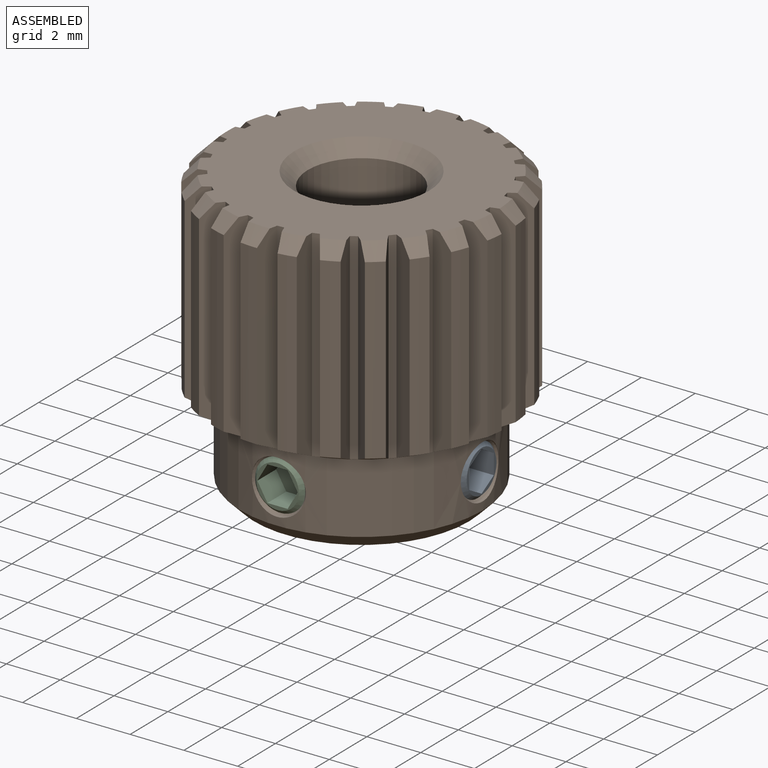
[diagram: assembled view]
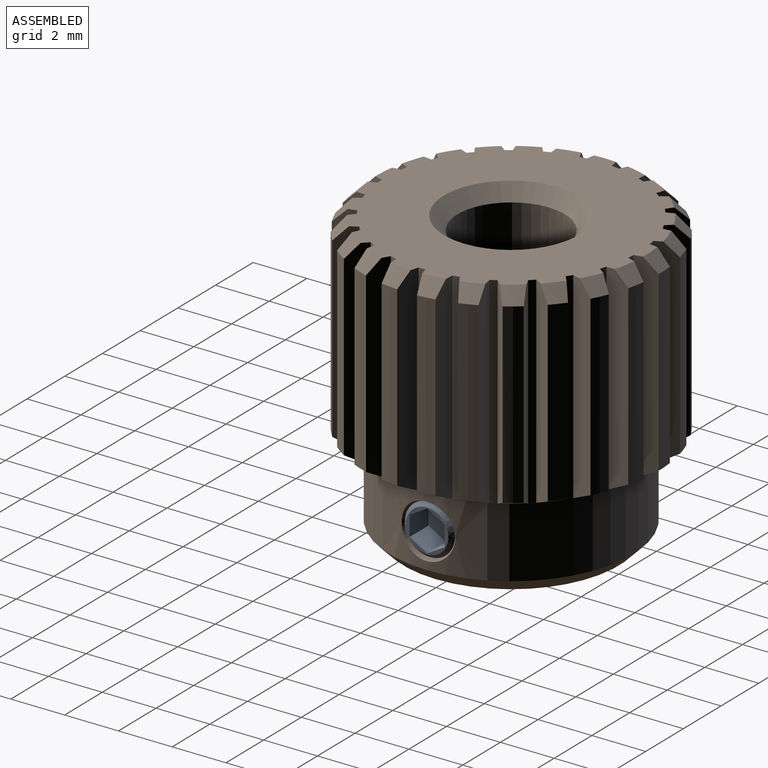
[diagram: assembled view, second angle]
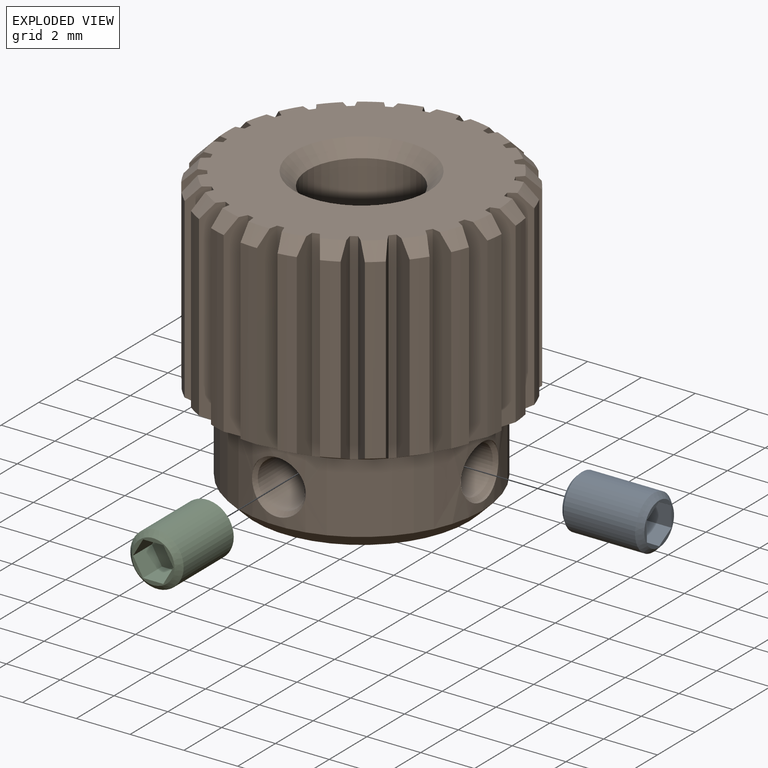
[diagram: exploded view]
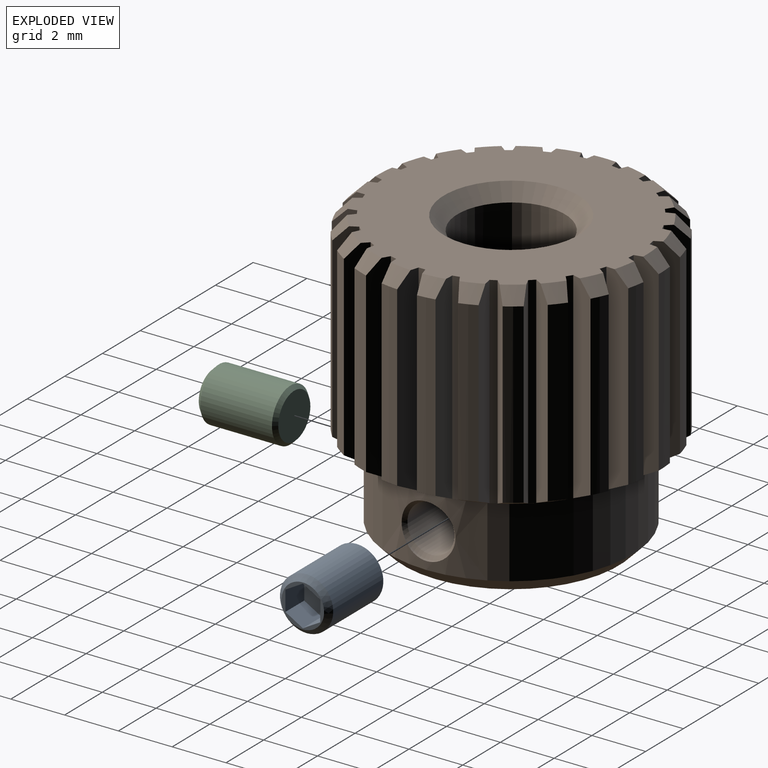
[diagram: exploded view, second angle]
ASSEMBLY  parts=3 mates=2
PART A: 12 faces, bbox 2x2x3 mm
  f0: plane 1.58x1.58mm, normal (0,0,1), area 0.5mm2, adj f4,f5,f6,f7,f8,f9,f11
  f1: cylinder r=0.99mm len=2.66mm, axis (0,0,1), area 16.6mm2, adj f3,f11
  f2: plane 1.7x1.7mm, normal (0,0,-1), area 2.3mm2, adj f3
  f3: cone r=0.85mm half-angle=45deg, axis (0,0,1), area 1.1mm2, adj f1,f2
  f4: plane 1x0.75mm, normal (0,-1,0), area 0.8mm2, adj f0,f5,f9,f10
  f5: plane 1x0.65mm, normal (-0.87,-0.5,0), area 0.7mm2, adj f0,f4,f6,f10
  f6: plane 1x0.65mm, normal (-0.87,0.5,0), area 0.7mm2, adj f0,f5,f7,f10
  f7: plane 1x0.75mm, normal (0,1,0), area 0.8mm2, adj f0,f6,f8,f10
  f8: plane 1x0.65mm, normal (0.87,0.5,0), area 0.7mm2, adj f0,f7,f9,f10
  f9: plane 1x0.65mm, normal (0.87,-0.5,0), area 0.7mm2, adj f0,f4,f8,f10
  f10: plane 1.5x1.3mm, normal (0,0,1), area 1.5mm2, adj f4,f5,f6,f7,f8,f9
  f11: cone r=0.99mm half-angle=45deg, axis (0,0,-1), area 1.6mm2, adj f0,f1
PART B: 141 faces, bbox 11x11x10.7 mm
  f0: cylinder r=5.5mm len=6.6mm, axis (0,0,-1), area 4.2mm2, adj f53,f57,f66,f70
  f1: cylinder r=5.5mm len=6.6mm, axis (0,0,-1), area 4.2mm2, adj f25,f53,f135,f140
  f2: cylinder r=5.5mm len=6.6mm, axis (0,0,-1), area 4.2mm2, adj f26,f53,f132,f136
  f3: cylinder r=5.5mm len=6.6mm, axis (0,0,-1), area 4.2mm2, adj f27,f53,f129,f133
  f4: cylinder r=5.5mm len=6.6mm, axis (0,0,-1), area 4.2mm2, adj f28,f53,f126,f130
  f5: cylinder r=5.5mm len=6.6mm, axis (0,0,-1), area 4.2mm2, adj f29,f53,f123,f127
  f6: cylinder r=5.5mm len=6.6mm, axis (0,0,-1), area 4.2mm2, adj f30,f53,f120,f124
  f7: cylinder r=5.5mm len=6.6mm, axis (0,0,-1), area 4.2mm2, adj f31,f53,f117,f121
  f8: cylinder r=5.5mm len=6.6mm, axis (0,0,-1), area 4.2mm2, adj f32,f53,f114,f118
  f9: cylinder r=5.5mm len=6.6mm, axis (0,0,-1), area 4.2mm2, adj f33,f53,f111,f115
  f10: cylinder r=5.5mm len=6.6mm, axis (0,0,-1), area 4.2mm2, adj f34,f53,f108,f112
  f11: cylinder r=5.5mm len=6.6mm, axis (0,0,-1), area 4.2mm2, adj f35,f53,f105,f109
  f12: cylinder r=5.5mm len=6.6mm, axis (0,0,-1), area 4.2mm2, adj f36,f53,f102,f106
  f13: cylinder r=5.5mm len=6.6mm, axis (0,0,-1), area 4.2mm2, adj f37,f53,f99,f103
  f14: cylinder r=5.5mm len=6.6mm, axis (0,0,-1), area 4.2mm2, adj f38,f53,f96,f100
  f15: cylinder r=5.5mm len=6.6mm, axis (0,0,-1), area 4.2mm2, adj f39,f53,f93,f97
  f16: cylinder r=5.5mm len=6.6mm, axis (0,0,-1), area 4.2mm2, adj f40,f53,f90,f94
  f17: cylinder r=5.5mm len=6.6mm, axis (0,0,-1), area 4.2mm2, adj f41,f53,f87,f91
  f18: cylinder r=5.5mm len=6.6mm, axis (0,0,-1), area 4.2mm2, adj f42,f53,f84,f88
  f19: cylinder r=5.5mm len=6.6mm, axis (0,0,-1), area 4.2mm2, adj f43,f53,f81,f85
  f20: cylinder r=5.5mm len=6.6mm, axis (0,0,-1), area 4.2mm2, adj f44,f53,f78,f82
  f21: cylinder r=5.5mm len=6.6mm, axis (0,0,-1), area 4.2mm2, adj f45,f53,f75,f79
  f22: cylinder r=5.5mm len=6.6mm, axis (0,0,-1), area 4.2mm2, adj f46,f53,f72,f76
  f23: cylinder r=5.5mm len=6.6mm, axis (0,0,-1), area 4.2mm2, adj f47,f53,f69,f73
  f24: cone r=5mm half-angle=45deg, axis (0,0,-1), area 0.5mm2, adj f51,f52,f67,f139
  f25: cone r=5mm half-angle=45deg, axis (0,0,-1), area 0.5mm2, adj f1,f52,f135,f140
  f26: cone r=5mm half-angle=45deg, axis (0,0,-1), area 0.5mm2, adj f2,f52,f132,f136
  f27: cone r=5mm half-angle=45deg, axis (0,0,-1), area 0.5mm2, adj f3,f52,f129,f133
  f28: cone r=5mm half-angle=45deg, axis (0,0,-1), area 0.5mm2, adj f4,f52,f126,f130
  f29: cone r=5mm half-angle=45deg, axis (0,0,-1), area 0.5mm2, adj f5,f52,f123,f127
  f30: cone r=5mm half-angle=45deg, axis (0,0,-1), area 0.5mm2, adj f6,f52,f120,f124
  f31: cone r=5mm half-angle=45deg, axis (0,0,-1), area 0.5mm2, adj f7,f52,f117,f121
  f32: cone r=5mm half-angle=45deg, axis (0,0,-1), area 0.5mm2, adj f8,f52,f114,f118
  f33: cone r=5mm half-angle=45deg, axis (0,0,-1), area 0.5mm2, adj f9,f52,f111,f115
  f34: cone r=5mm half-angle=45deg, axis (0,0,-1), area 0.5mm2, adj f10,f52,f108,f112
  f35: cone r=5mm half-angle=45deg, axis (0,0,-1), area 0.5mm2, adj f11,f52,f105,f109
  f36: cone r=5mm half-angle=45deg, axis (0,0,-1), area 0.5mm2, adj f12,f52,f102,f106
  f37: cone r=5mm half-angle=45deg, axis (0,0,-1), area 0.5mm2, adj f13,f52,f99,f103
  f38: cone r=5mm half-angle=45deg, axis (0,0,-1), area 0.5mm2, adj f14,f52,f96,f100
  f39: cone r=5mm half-angle=45deg, axis (0,0,-1), area 0.5mm2, adj f15,f52,f93,f97
  f40: cone r=5mm half-angle=45deg, axis (0,0,-1), area 0.5mm2, adj f16,f52,f90,f94
  f41: cone r=5mm half-angle=45deg, axis (0,0,-1), area 0.5mm2, adj f17,f52,f87,f91
  f42: cone r=5mm half-angle=45deg, axis (0,0,-1), area 0.5mm2, adj f18,f52,f84,f88
  f43: cone r=5mm half-angle=45deg, axis (0,0,-1), area 0.5mm2, adj f19,f52,f81,f85
  f44: cone r=5mm half-angle=45deg, axis (0,0,-1), area 0.5mm2, adj f20,f52,f78,f82
  f45: cone r=5mm half-angle=45deg, axis (0,0,-1), area 0.5mm2, adj f21,f52,f75,f79
  f46: cone r=5mm half-angle=45deg, axis (0,0,-1), area 0.5mm2, adj f22,f52,f72,f76
  f47: cone r=5mm half-angle=45deg, axis (0,0,-1), area 0.5mm2, adj f23,f52,f69,f73
  f48: cylinder r=2mm len=9.7mm, axis (0,0,1), area 117mm2, adj f54,f56,f58,f62
  f49: cylinder r=4.5mm len=9mm, axis (0,0,1), area 67.2mm2, adj f53,f55,f59,f60,f61,f63,f65
  f50: plane 8x8mm, normal (0,0,-1), area 30.6mm2, adj f54,f55
  f51: cylinder r=5.5mm len=6.6mm, axis (0,0,-1), area 4.2mm2, adj f24,f53,f67,f139
  f52: plane 10x10mm, normal (0,0,1), area 56.3mm2, adj f24,f25,f26,f27,f28,f29,f30,f31
  f53: cone r=5.5mm half-angle=63.4deg, axis (0,0,1), area 24.3mm2, adj f0,f1,f2,f3,f4,f5,f6,f7
  f54: cone r=2.5mm half-angle=45deg, axis (0,0,-1), area 10mm2, adj f48,f50
  f55: cone r=4.5mm half-angle=45deg, axis (0,0,1), area 18.9mm2, adj f49,f50
  f56: cone r=2mm half-angle=45deg, axis (0,0,1), area 10mm2, adj f48,f52
  f57: cone r=5mm half-angle=45deg, axis (0,0,-1), area 0.5mm2, adj f0,f52,f66,f70
  f58: cylinder r=0.88mm len=2.26mm, axis (0,-1,0), area 12.4mm2, adj f48,f60
  f59: cylinder r=1mm len=1mm, axis (0,-1,0), area 0mm2, adj f49,f60
  f60: cone r=0.88mm half-angle=45deg, axis (0,-1,0), area 1.1mm2, adj f49,f58,f59,f61
  f61: cylinder r=1mm len=2mm, axis (0,-1,0), area 0mm2, adj f49,f60
  f62: cylinder r=0.88mm len=2.26mm, axis (1,0,0), area 12.4mm2, adj f48,f64
  f63: cylinder r=1mm len=2mm, axis (1,0,0), area 0.2mm2, adj f49,f64
  f64: cone r=0.88mm half-angle=45deg, axis (1,0,0), area 1mm2, adj f62,f63,f65
  f65: cylinder r=1mm len=2mm, axis (1,0,0), area 0.2mm2, adj f49,f64
  f66: plane 7.52x0.84mm, normal (-0.17,0.98,0), area 6mm2, adj f0,f52,f53,f57,f68
  f67: plane 7.52x0.77mm, normal (-0.42,-0.91,0), area 5.9mm2, adj f24,f51,f52,f53,f68
  f68: cylinder r=4.7mm len=7.5mm, axis (0,0,-1), area 2.3mm2, adj f52,f53,f66,f67
  f69: plane 7.52x0.77mm, normal (-0.41,0.91,0), area 5.9mm2, adj f23,f47,f52,f53,f71
  f70: plane 7.52x0.84mm, normal (-0.17,-0.98,0), area 6mm2, adj f0,f52,f53,f57,f71
  f71: cylinder r=4.7mm len=7.5mm, axis (0,0,-1), area 1.9mm2, adj f52,f53,f69,f70
  f72: plane 7.52x0.66mm, normal (-0.63,0.78,0), area 5.9mm2, adj f22,f46,f52,f53,f74
  f73: plane 7.52x0.84mm, normal (0.08,-1,0), area 5.9mm2, adj f23,f47,f52,f53,f74
  f74: cylinder r=4.7mm len=7.5mm, axis (0,0,-1), area 1.9mm2, adj f52,f53,f72,f73
  f75: plane 7.52x0.68mm, normal (-0.8,0.6,0), area 5.9mm2, adj f21,f45,f52,f53,f77
  f76: plane 7.52x0.8mm, normal (0.32,-0.95,0), area 5.9mm2, adj f22,f46,f52,f53,f77
  f77: cylinder r=4.7mm len=7.5mm, axis (0,0,-1), area 1.9mm2, adj f52,f53,f75,f76
  f78: plane 7.52x0.78mm, normal (-0.92,0.38,0), area 5.9mm2, adj f20,f44,f52,f53,f80
  f79: plane 7.52x0.71mm, normal (0.55,-0.84,0), area 5.9mm2, adj f21,f45,f52,f53,f80
  f80: cylinder r=4.7mm len=7.5mm, axis (0,0,-1), area 1.9mm2, adj f52,f53,f78,f79
  f81: plane 7.52x0.83mm, normal (-0.99,0.14,0), area 5.9mm2, adj f19,f43,f52,f53,f83
  f82: plane 7.52x0.63mm, normal (0.74,-0.68,0), area 5.9mm2, adj f20,f44,f52,f53,f83
  f83: cylinder r=4.7mm len=7.5mm, axis (0,0,-1), area 1.9mm2, adj f52,f53,f81,f82
  f84: plane 7.52x0.84mm, normal (-0.99,-0.11,0), area 5.9mm2, adj f18,f42,f52,f53,f86
  f85: plane 7.52x0.75mm, normal (0.88,-0.47,0), area 5.9mm2, adj f19,f43,f52,f53,f86
  f86: cylinder r=4.7mm len=7.5mm, axis (0,0,-1), area 1.9mm2, adj f52,f53,f84,f85
  f87: plane 7.52x0.79mm, normal (-0.94,-0.35,0), area 5.9mm2, adj f17,f41,f52,f53,f89
  f88: plane 7.52x0.82mm, normal (0.97,-0.24,0), area 5.9mm2, adj f18,f42,f52,f53,f89
  f89: cylinder r=4.7mm len=7.5mm, axis (0,0,-1), area 1.9mm2, adj f52,f53,f87,f88
  f90: plane 7.52x0.69mm, normal (-0.82,-0.57,0), area 5.9mm2, adj f16,f40,f52,f53,f92
  f91: plane 7.52x0.84mm, normal (1,0.01,0), area 5.9mm2, adj f17,f41,f52,f53,f92
  f92: cylinder r=4.7mm len=7.5mm, axis (0,0,-1), area 1.9mm2, adj f52,f53,f90,f91
  f93: plane 7.52x0.64mm, normal (-0.65,-0.76,0), area 5.9mm2, adj f15,f39,f52,f53,f95
  f94: plane 7.52x0.81mm, normal (0.97,0.26,0), area 5.9mm2, adj f16,f40,f52,f53,f95
  f95: cylinder r=4.7mm len=7.5mm, axis (0,0,-1), area 1.9mm2, adj f52,f53,f93,f94
  f96: plane 7.52x0.76mm, normal (-0.44,-0.9,0), area 5.9mm2, adj f14,f38,f52,f53,f98
  f97: plane 7.52x0.74mm, normal (0.87,0.49,0), area 5.9mm2, adj f15,f39,f52,f53,f98
  f98: cylinder r=4.7mm len=7.5mm, axis (0,0,-1), area 1.9mm2, adj f52,f53,f96,f97
  f99: plane 7.52x0.82mm, normal (-0.21,-0.98,0), area 5.9mm2, adj f13,f37,f52,f53,f101
  f100: plane 7.52x0.61mm, normal (0.72,0.69,0), area 5.9mm2, adj f14,f38,f52,f53,f101
  f101: cylinder r=4.7mm len=7.5mm, axis (0,0,-1), area 1.9mm2, adj f52,f53,f99,f100
  f102: plane 7.52x0.84mm, normal (0.04,-1,0), area 5.9mm2, adj f12,f36,f52,f53,f104
  f103: plane 7.52x0.72mm, normal (0.53,0.85,0), area 5.9mm2, adj f13,f37,f52,f53,f104
  f104: cylinder r=4.7mm len=7.5mm, axis (0,0,-1), area 1.9mm2, adj f52,f53,f102,f103
  f105: plane 7.52x0.81mm, normal (0.29,-0.96,0), area 5.9mm2, adj f11,f35,f52,f53,f107
  f106: plane 7.52x0.8mm, normal (0.3,0.95,0), area 5.9mm2, adj f12,f36,f52,f53,f107
  f107: cylinder r=4.7mm len=7.5mm, axis (0,0,-1), area 1.9mm2, adj f52,f53,f105,f106
  f108: plane 7.52x0.72mm, normal (0.52,-0.85,0), area 5.9mm2, adj f10,f34,f52,f53,f110
  f109: plane 7.52x0.84mm, normal (0.05,1,0), area 5.9mm2, adj f11,f35,f52,f53,f110
  f110: cylinder r=4.7mm len=7.5mm, axis (0,0,-1), area 1.9mm2, adj f52,f53,f108,f109
  f111: plane 7.52x0.61mm, normal (0.71,-0.7,0), area 5.9mm2, adj f9,f33,f52,f53,f113
  f112: plane 7.52x0.83mm, normal (-0.2,0.98,0), area 5.9mm2, adj f10,f34,f52,f53,f113
  f113: cylinder r=4.7mm len=7.5mm, axis (0,0,-1), area 1.9mm2, adj f52,f53,f111,f112
  f114: plane 7.52x0.73mm, normal (0.87,-0.5,0), area 5.9mm2, adj f8,f32,f52,f53,f116
  f115: plane 7.52x0.76mm, normal (-0.43,0.9,0), area 5.9mm2, adj f9,f33,f52,f53,f116
  f116: cylinder r=4.7mm len=7.5mm, axis (0,0,-1), area 1.9mm2, adj f52,f53,f114,f115
  f117: plane 7.52x0.81mm, normal (0.96,-0.27,0), area 5.9mm2, adj f7,f31,f52,f53,f119
  f118: plane 7.52x0.65mm, normal (-0.64,0.77,0), area 5.9mm2, adj f8,f32,f52,f53,f119
  f119: cylinder r=4.7mm len=7.5mm, axis (0,0,-1), area 1.9mm2, adj f52,f53,f117,f118
  f120: plane 7.52x0.84mm, normal (1,-0.02,0), area 5.9mm2, adj f6,f30,f52,f53,f122
  f121: plane 7.52x0.69mm, normal (-0.81,0.58,0), area 5.9mm2, adj f7,f31,f52,f53,f122
  f122: cylinder r=4.7mm len=7.5mm, axis (0,0,-1), area 1.9mm2, adj f52,f53,f120,f121
  f123: plane 7.52x0.82mm, normal (0.97,0.23,0), area 5.9mm2, adj f5,f29,f52,f53,f125
  f124: plane 7.52x0.79mm, normal (-0.93,0.36,0), area 5.9mm2, adj f6,f30,f52,f53,f125
  f125: cylinder r=4.7mm len=7.5mm, axis (0,0,-1), area 1.9mm2, adj f52,f53,f123,f124
  f126: plane 7.52x0.75mm, normal (0.89,0.46,0), area 5.9mm2, adj f4,f28,f52,f53,f128
  f127: plane 7.52x0.84mm, normal (-0.99,0.12,0), area 5.9mm2, adj f5,f29,f52,f53,f128
  f128: cylinder r=4.7mm len=7.5mm, axis (0,0,-1), area 1.9mm2, adj f52,f53,f126,f127
  f129: plane 7.52x0.63mm, normal (0.74,0.67,0), area 5.9mm2, adj f3,f27,f52,f53,f131
  f130: plane 7.52x0.84mm, normal (-0.99,-0.13,0), area 5.9mm2, adj f4,f28,f52,f53,f131
  f131: cylinder r=4.7mm len=7.5mm, axis (0,0,-1), area 1.9mm2, adj f52,f53,f129,f130
  f132: plane 7.52x0.7mm, normal (0.56,0.83,0), area 5.9mm2, adj f2,f26,f52,f53,f134
  f133: plane 7.52x0.78mm, normal (-0.93,-0.37,0), area 5.9mm2, adj f3,f27,f52,f53,f134
  f134: cylinder r=4.7mm len=7.5mm, axis (0,0,-1), area 1.9mm2, adj f52,f53,f132,f133
  f135: plane 7.52x0.8mm, normal (0.33,0.94,0), area 5.9mm2, adj f1,f25,f52,f53,f137
  f136: plane 7.52x0.68mm, normal (-0.81,-0.59,0), area 5.9mm2, adj f2,f26,f52,f53,f137
  f137: cylinder r=4.7mm len=7.5mm, axis (0,0,-1), area 1.9mm2, adj f52,f53,f135,f136
  f138: cylinder r=4.7mm len=7.5mm, axis (0,0,-1), area 1.9mm2, adj f52,f53,f139,f140
  f139: plane 7.52x0.84mm, normal (0.09,1,0), area 5.9mm2, adj f24,f51,f52,f53,f138
  f140: plane 7.52x0.66mm, normal (-0.63,-0.77,0), area 5.9mm2, adj f1,f25,f52,f53,f138
PART C: same geometry as A
PLACE A rot(axis=(0.71,0,0.71),180deg) t=(4.46,-35.48,22.63)mm
PLACE B at identity fixed
PLACE C rot(axis=(1,0,0),90deg) t=(24.43,-4.46,33.68)mm
MATE fastened A.f1 <-> B.f62  axis (-1,0,0) through (4.26,0,-1.8)mm
MATE fastened C.f1 <-> B.f58  axis (0,1,0) through (0,-4.26,-1.8)mm
